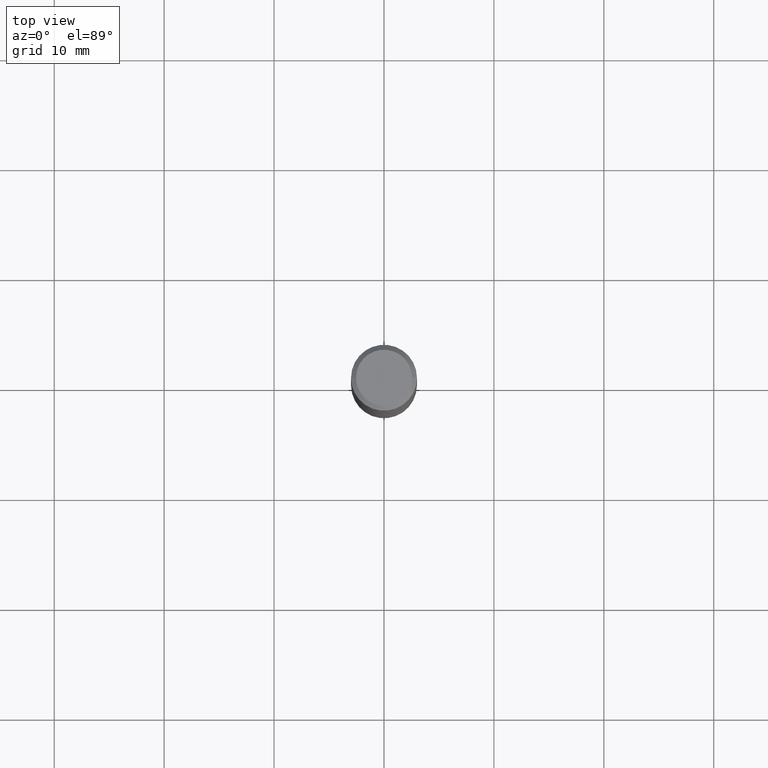
[diagram: clean part render]
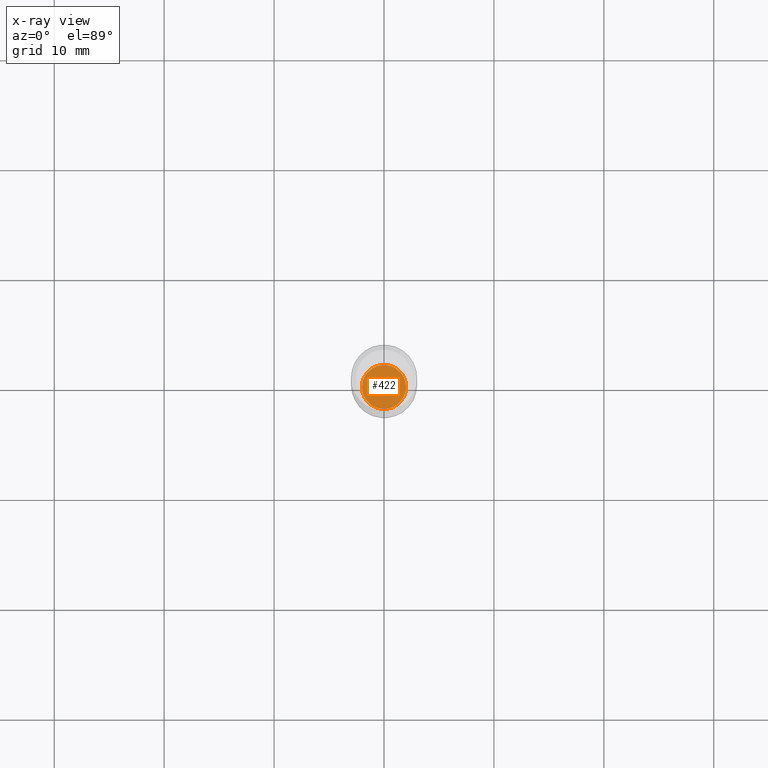
[diagram: x-ray — body ghosted, one internal face saturated and labeled with its STEP entity id]
A machine part, top view, then the same camera in x-ray: the body is ghosted and one INTERNAL B-rep face — a face not visible from any outside direction — is saturated and labeled: STEP entity #422.
In plain terms, the highlighted planar face has unit normal (-0, 0, 1).
Its self-contained STEP definition (entity closure, byte-faithful):
#36 = DIRECTION ( 'NONE',  ( 1.000000000000000000, -6.982962677686271444E-15, 0.000000000000000000 ) ) ;
#66 = CIRCLE ( 'NONE', #337, 0.07900000000000000078 ) ;
#80 = CARTESIAN_POINT ( 'NONE',  ( 4.717553874011746679E-29, -6.735416650762311704E-15, -1.929099999999999815 ) ) ;
#101 = CIRCLE ( 'NONE', #457, 0.07900000000000000078 ) ;
#115 = DIRECTION ( 'NONE',  ( -2.445468806185136597E-29, 3.491481338843145583E-15, 1.000000000000000000 ) ) ;
#138 = EDGE_LOOP ( 'NONE', ( #220, #289 ) ) ;
#199 = CARTESIAN_POINT ( 'NONE',  ( -0.07900000000000000078, -6.171438662337720858E-15, -1.929099999999999815 ) ) ;
#211 = VERTEX_POINT ( 'NONE', #199 ) ;
#213 = CARTESIAN_POINT ( 'NONE',  ( 4.717553874011746679E-29, -6.735416650762311704E-15, -1.929099999999999815 ) ) ;
#220 = ORIENTED_EDGE ( 'NONE', *, *, #416, .F. ) ;
#241 = CARTESIAN_POINT ( 'NONE',  ( 4.717553874011746679E-29, -6.735416650762311704E-15, -1.929099999999999815 ) ) ;
#257 = PLANE ( 'NONE',  #284 ) ;
#276 = DIRECTION ( 'NONE',  ( -2.445468806185136597E-29, 3.491481338843145583E-15, 1.000000000000000000 ) ) ;
#280 = DIRECTION ( 'NONE',  ( -2.438088387897960049E-29, 3.491481338843145188E-15, 1.000000000000000000 ) ) ;
#284 = AXIS2_PLACEMENT_3D ( 'NONE', #213, #280, #362 ) ;
#289 = ORIENTED_EDGE ( 'NONE', *, *, #292, .F. ) ;
#292 = EDGE_CURVE ( 'NONE', #211, #367, #66, .T. ) ;
#337 = AXIS2_PLACEMENT_3D ( 'NONE', #241, #276, #386 ) ;
#362 = DIRECTION ( 'NONE',  ( 1.000000000000000000, -6.982962677686265922E-15, 4.876176775795935793E-29 ) ) ;
#367 = VERTEX_POINT ( 'NONE', #393 ) ;
#386 = DIRECTION ( 'NONE',  ( 1.000000000000000000, -6.982962677686271444E-15, 0.000000000000000000 ) ) ;
#393 = CARTESIAN_POINT ( 'NONE',  ( 0.07900000000000000078, -7.287070702299526553E-15, -1.929099999999999815 ) ) ;
#416 = EDGE_CURVE ( 'NONE', #367, #211, #101, .T. ) ;
#422 = ADVANCED_FACE ( 'NONE', ( #435 ), #257, .F. ) ;
#435 = FACE_OUTER_BOUND ( 'NONE', #138, .T. ) ;
#457 = AXIS2_PLACEMENT_3D ( 'NONE', #80, #115, #36 ) ;